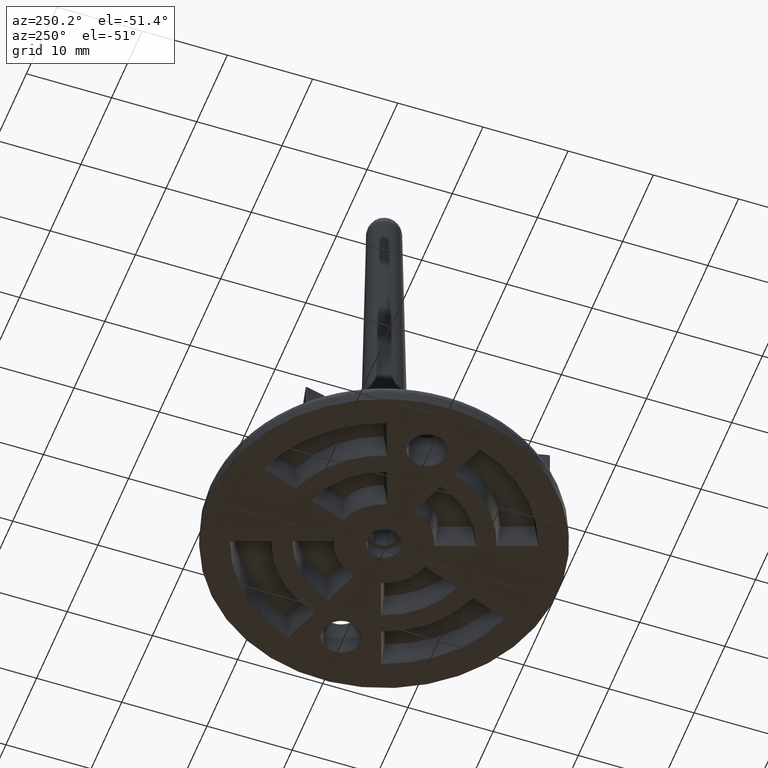
[diagram: clean part render]
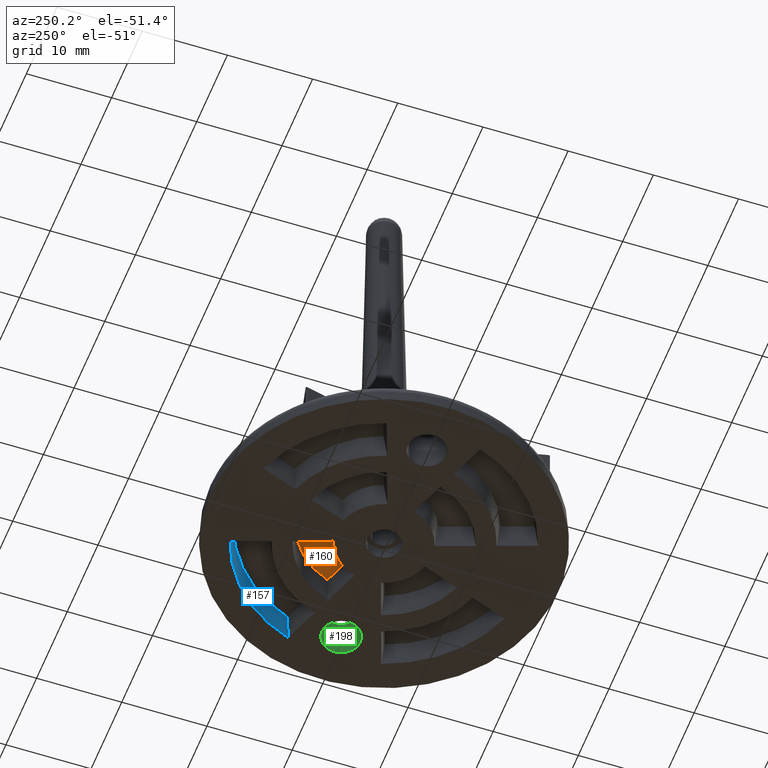
[diagram: same view with three faces highlighted in distinct colors, each labeled with its STEP entity id]
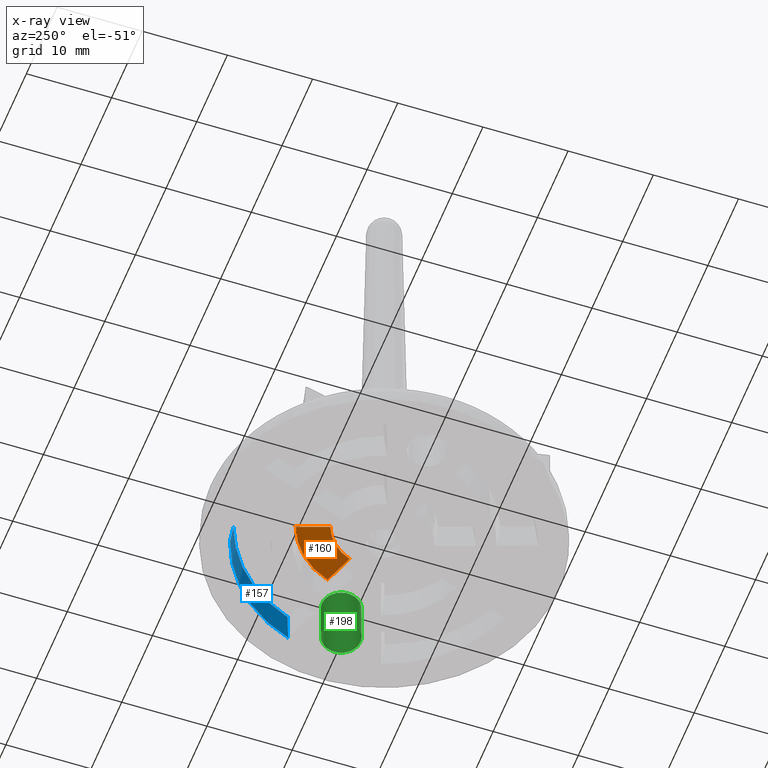
[diagram: x-ray of the same camera — body ghosted, the three highlighted faces saturated]
A machine part, auxiliary view with three faces highlighted in distinct colors.
The next image is the same camera in x-ray (body ghosted, the three faces saturated) — at least one of them is partly hidden behind the body in this view.
Their STEP definitions:

[orange] entity #160 — the highlighted planar face has unit normal (0, -0, -1).
#160 = ADVANCED_FACE( '', ( #325 ), #326, .T. );
#325 = FACE_OUTER_BOUND( '', #601, .T. );
#326 = PLANE( '', #602 );
#601 = EDGE_LOOP( '', ( #1080, #1081, #1082, #1083 ) );
#602 = AXIS2_PLACEMENT_3D( '', #1084, #1085, #1086 );
#1080 = ORIENTED_EDGE( '', *, *, #1811, .F. );
#1081 = ORIENTED_EDGE( '', *, *, #1808, .F. );
#1082 = ORIENTED_EDGE( '', *, *, #1804, .F. );
#1083 = ORIENTED_EDGE( '', *, *, #1812, .F. );
#1084 = CARTESIAN_POINT( '', ( -3.36975451311746E-032, 5.50340850772073E-016, 2.99601500000000 ) );
#1085 = DIRECTION( '', ( 1.29246970711411E-032, -1.83690953073357E-016, -1.00000000000000 ) );
#1086 = DIRECTION( '', ( 0.342020143325669, 0.939692620785908, -1.72613033108164E-016 ) );
#1804 = EDGE_CURVE( '', #2164, #2165, #2166, .F. );
#1808 = EDGE_CURVE( '', #2165, #2172, #2173, .T. );
#1811 = EDGE_CURVE( '', #2172, #2177, #2178, .F. );
#1812 = EDGE_CURVE( '', #2177, #2164, #2179, .T. );
#2164 = VERTEX_POINT( '', #2760 );
#2165 = VERTEX_POINT( '', #2761 );
#2166 = LINE( '', #2762, #2763 );
#2172 = VERTEX_POINT( '', #2776 );
#2173 = CIRCLE( '', #2777, 9.77388500000000 );
#2177 = VERTEX_POINT( '', #2784 );
#2178 = LINE( '', #2785, #2786 );
#2179 = CIRCLE( '', #2787, 5.94291500000000 );
#2760 = CARTESIAN_POINT( '', ( 5.58451337145789, 2.03259664007227, 2.99601500000000 ) );
#2761 = CARTESIAN_POINT( '', ( 9.18444761091008, 3.34286554854861, 2.99601500000000 ) );
#2762 = CARTESIAN_POINT( '', ( 3.58965600130193, 1.30652793572895, 2.99601500000000 ) );
#2763 = VECTOR( '', #3345, 1000.00000000000 );
#2776 = CARTESIAN_POINT( '', ( 3.34286554854860, 9.18444761091008, 2.99601500000000 ) );
#2777 = AXIS2_PLACEMENT_3D( '', #3347, #3348, #3349 );
#2784 = CARTESIAN_POINT( '', ( 2.03259664007227, 5.58451337145789, 2.99601500000000 ) );
#2785 = CARTESIAN_POINT( '', ( 2.03259664007227, 5.58451337145789, 2.99601500000000 ) );
#2786 = VECTOR( '', #3353, 1000.00000000000 );
#2787 = AXIS2_PLACEMENT_3D( '', #3354, #3355, #3356 );
#3345 = DIRECTION( '', ( -0.939692620785908, -0.342020143325669, 6.28260060977781E-017 ) );
#3347 = CARTESIAN_POINT( '', ( -3.36975451311746E-032, 5.50340850772073E-016, 2.99601500000000 ) );
#3348 = DIRECTION( '', ( -1.12474554136660E-032, 1.83690953073357E-016, 1.00000000000000 ) );
#3349 = DIRECTION( '', ( -1.00000000000000, -1.16741468922377E-016, 1.01968962758690E-032 ) );
#3353 = DIRECTION( '', ( 0.342020143325669, 0.939692620785908, -1.72613033108164E-016 ) );
#3354 = CARTESIAN_POINT( '', ( -3.36975451311746E-032, 5.50340850772073E-016, 2.99601500000000 ) );
#3355 = DIRECTION( '', ( 1.12474554136660E-032, -1.83690953073357E-016, -1.00000000000000 ) );
#3356 = DIRECTION( '', ( -1.00000000000000, -6.12303176911189E-017, 0.000000000000000 ) );

[blue] entity #157 — the highlighted conical surface has half-angle 7 deg.
#157 = ADVANCED_FACE( '', ( #319 ), #320, .F. );
#319 = FACE_OUTER_BOUND( '', #595, .T. );
#320 = CONICAL_SURFACE( '', #596, 16.6499850000000, 0.122173047639603 );
#595 = EDGE_LOOP( '', ( #1059, #1060, #1061, #1062 ) );
#596 = AXIS2_PLACEMENT_3D( '', #1063, #1064, #1065 );
#1059 = ORIENTED_EDGE( '', *, *, #1802, .F. );
#1060 = ORIENTED_EDGE( '', *, *, #1795, .F. );
#1061 = ORIENTED_EDGE( '', *, *, #1803, .T. );
#1062 = ORIENTED_EDGE( '', *, *, #1800, .T. );
#1063 = CARTESIAN_POINT( '', ( -3.36975451311746E-032, 5.50340850772073E-016, 2.99601500000000 ) );
#1064 = DIRECTION( '', ( 1.12474554136660E-032, -1.83690953073357E-016, -1.00000000000000 ) );
#1065 = DIRECTION( '', ( -6.12303176911189E-017, 1.00000000000000, -1.83690953073357E-016 ) );
#1795 = EDGE_CURVE( '', #2149, #2145, #2151, .T. );
#1800 = EDGE_CURVE( '', #2159, #2157, #2160, .T. );
#1802 = EDGE_CURVE( '', #2145, #2157, #2162, .T. );
#1803 = EDGE_CURVE( '', #2149, #2159, #2163, .T. );
#2145 = VERTEX_POINT( '', #2725 );
#2149 = VERTEX_POINT( '', #2733 );
#2151 = B_SPLINE_CURVE_WITH_KNOTS( '', 3, ( #2736, #2737, #2738, #2739 ), .UNSPECIFIED., .F., .F., ( 4, 4 ), ( 0.000000000000000, 0.00304036914591736 ), .UNSPECIFIED. );
#2157 = VERTEX_POINT( '', #2748 );
#2159 = VERTEX_POINT( '', #2751 );
#2160 = B_SPLINE_CURVE_WITH_KNOTS( '', 3, ( #2752, #2753, #2754, #2755 ), .UNSPECIFIED., .F., .F., ( 4, 4 ), ( 0.000000000000000, 0.00304036914591736 ), .UNSPECIFIED. );
#2162 = CIRCLE( '', #2758, 16.6499850000000 );
#2163 = CIRCLE( '', #2759, 17.0178493862335 );
#2725 = CARTESIAN_POINT( '', ( 5.69463025607023, 15.6458680406961, 2.99601500000000 ) );
#2733 = CARTESIAN_POINT( '', ( 5.47340782340071, 16.1136279133926, -2.53392295126752E-015 ) );
#2736 = CARTESIAN_POINT( '', ( 5.47340782340071, 16.1136279133926, -2.53392295126752E-015 ) );
#2737 = CARTESIAN_POINT( '', ( 5.54760358208122, 15.9589032755774, 0.998823865357388 ) );
#2738 = CARTESIAN_POINT( '', ( 5.62135431492517, 15.8030088035885, 1.99750047569523 ) );
#2739 = CARTESIAN_POINT( '', ( 5.69463025607023, 15.6458680406961, 2.99601500000000 ) );
#2748 = CARTESIAN_POINT( '', ( 15.6458680406961, 5.69463025607023, 2.99601500000000 ) );
#2751 = CARTESIAN_POINT( '', ( 16.1136279133926, 5.47340782340071, -5.79410782026638E-016 ) );
#2752 = CARTESIAN_POINT( '', ( 16.1136279133926, 5.47340782340071, -5.79410782026638E-016 ) );
#2753 = CARTESIAN_POINT( '', ( 15.9589032755774, 5.54760358208122, 0.998823865357390 ) );
#2754 = CARTESIAN_POINT( '', ( 15.8030088035885, 5.62135431492517, 1.99750047569523 ) );
#2755 = CARTESIAN_POINT( '', ( 15.6458680406961, 5.69463025607023, 2.99601500000000 ) );
#2758 = AXIS2_PLACEMENT_3D( '', #3339, #3340, #3341 );
#2759 = AXIS2_PLACEMENT_3D( '', #3342, #3343, #3344 );
#3339 = CARTESIAN_POINT( '', ( -3.36975451311746E-032, 5.50340850772073E-016, 2.99601500000000 ) );
#3340 = DIRECTION( '', ( 1.12474554136660E-032, -1.83690953073357E-016, -1.00000000000000 ) );
#3341 = DIRECTION( '', ( -1.00000000000000, -1.16741468922377E-016, 1.01968962758690E-032 ) );
#3342 = CARTESIAN_POINT( '', ( 2.39573453368183E-047, -3.91266062960395E-031, -2.13002358806502E-015 ) );
#3343 = DIRECTION( '', ( 1.12474554136660E-032, -1.83690953073357E-016, -1.00000000000000 ) );
#3344 = DIRECTION( '', ( -6.12303176911189E-017, 1.00000000000000, -1.83690953073357E-016 ) );

[green] entity #198 — the highlighted cylindrical surface (bore or boss wall) has radius 2.25 mm, axis along (-0, 0, 1).
#198 = ADVANCED_FACE( '', ( #421, #422 ), #423, .F. );
#421 = FACE_OUTER_BOUND( '', #697, .T. );
#422 = FACE_OUTER_BOUND( '', #698, .T. );
#423 = CYLINDRICAL_SURFACE( '', #699, 2.25000000000001 );
#697 = EDGE_LOOP( '', ( #1398 ) );
#698 = EDGE_LOOP( '', ( #1399 ) );
#699 = AXIS2_PLACEMENT_3D( '', #1400, #1401, #1402 );
#1398 = ORIENTED_EDGE( '', *, *, #1885, .F. );
#1399 = ORIENTED_EDGE( '', *, *, #1690, .T. );
#1400 = CARTESIAN_POINT( '', ( 14.0000000000000, 6.42906561168512E-015, 34.9993590001010 ) );
#1401 = DIRECTION( '', ( -1.12474554136660E-032, 1.83690953073357E-016, 1.00000000000000 ) );
#1402 = DIRECTION( '', ( -1.00000000000000, -3.03858167864314E-064, -1.12474554136660E-032 ) );
#1690 = EDGE_CURVE( '', #1967, #1967, #1968, .F. );
#1885 = EDGE_CURVE( '', #2302, #2302, #2303, .T. );
#1967 = VERTEX_POINT( '', #2427 );
#1968 = CIRCLE( '', #2428, 2.25000000000001 );
#2302 = VERTEX_POINT( '', #3038 );
#2303 = CIRCLE( '', #3039, 2.25000000000001 );
#2427 = CARTESIAN_POINT( '', ( 14.0000000000000, 2.25000000000001, 4.99990699999999 ) );
#2428 = AXIS2_PLACEMENT_3D( '', #3191, #3192, #3193 );
#3038 = CARTESIAN_POINT( '', ( 16.2500000000000, -9.18435845238954E-022, -4.99989699989656E-006 ) );
#3039 = AXIS2_PLACEMENT_3D( '', #3452, #3453, #3454 );
#3191 = CARTESIAN_POINT( '', ( 14.0000000000000, 9.18437682108146E-016, 4.99990699999999 ) );
#3192 = DIRECTION( '', ( 1.12474554136660E-032, -1.83690953073357E-016, -1.00000000000000 ) );
#3193 = DIRECTION( '', ( 0.000000000000000, 1.00000000000000, -1.83690953073357E-016 ) );
#3452 = CARTESIAN_POINT( '', ( 14.0000000000000, -9.18435845238954E-022, -4.99989699989656E-006 ) );
#3453 = DIRECTION( '', ( -1.12474554136660E-032, -1.26466724448666E-022, 1.00000000000000 ) );
#3454 = DIRECTION( '', ( 1.00000000000000, 3.03858167864314E-064, 1.12474554136660E-032 ) );